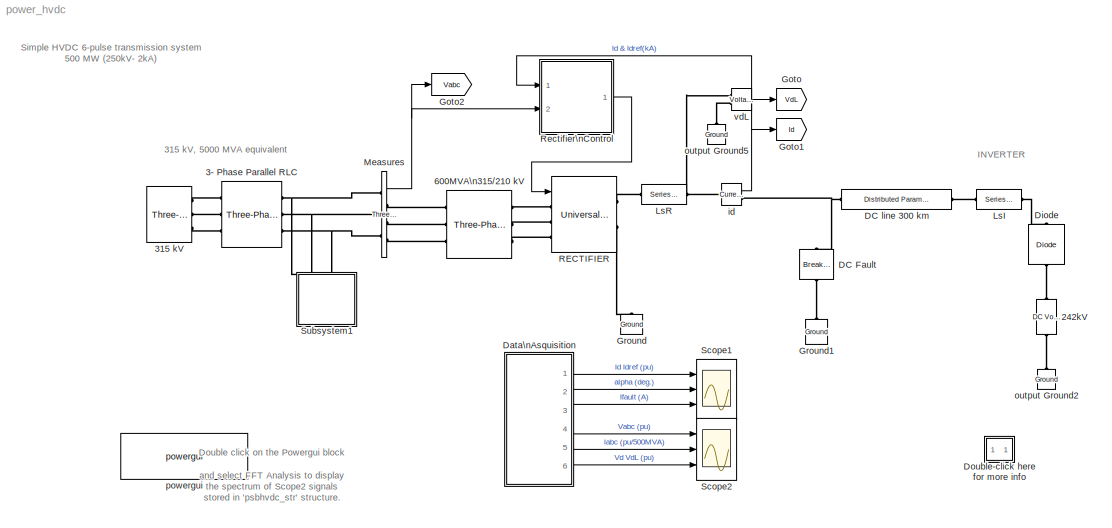
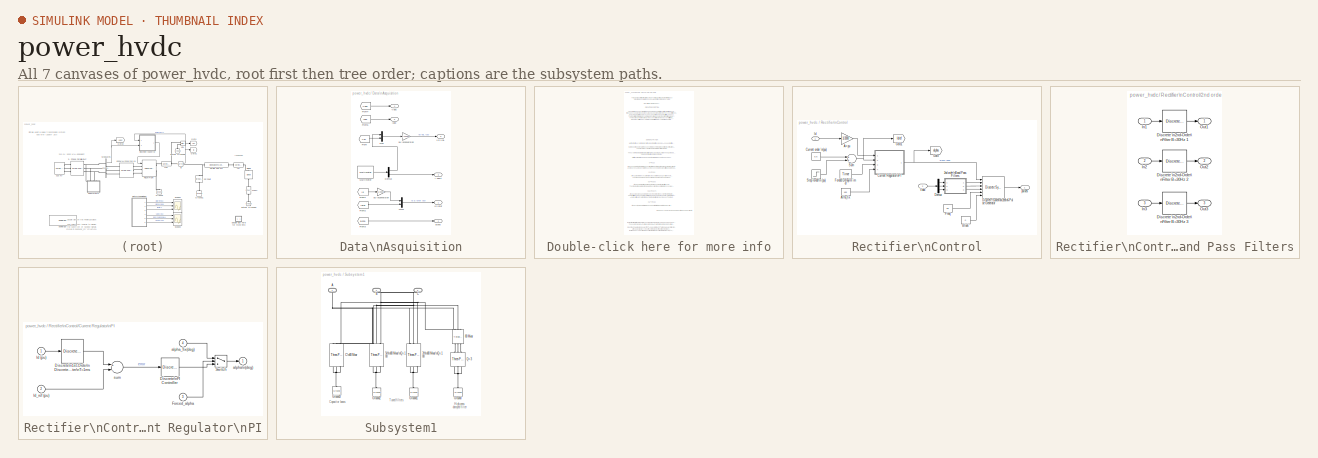
[diagram: thumbnail index - all 7 canvases of the model, root first then tree order]
MODEL power_hvdc
KIND model
BLOCK [Reference] 242kV  REF=powerlib/Electrical\nSources/DC Voltage Source
  Amplitude = 242000
  AttributesFormatString = \\n
  Description = source block
  Measurements = None
  Ports = [0, 0, 0, 0, 0, 1, 1]
  ShowPortLabels = on
  SourceBlock = powerlib/Electrical\nSources/DC Voltage Source
  SourceType = DC Voltage Source
BLOCK [Reference] 3- Phase Parallel RLC  REF=powerlib/Elements/Three-Phase\nParallel RLC Branch
  AttributesFormatString = \\n
  Capacitance = 0
  Inductance = 23.264e-3
  LConnTagsString = A|B|C
  LeftPortType = p1
  Measurements = None
  PhysicalDomain = powersysdomain
  Ports = [0, 0, 0, 0, 0, 3, 3]
  RConnTagsString = A|B|C
  Resistance = 12.41
  RightPortType = p1
  SourceBlock = powerlib/Elements/Three-Phase\nParallel RLC Branch
  SourceType = Three-Phase Parallel RLC Branch
  SubClassName = unknown
BLOCK [Reference] 315 kV  REF=powerlib/Electrical\nSources/Three-Phase Source
  BaseVoltage = 0
  Frequency = 60
  Inductance = 46.671e-3
  InternalConnection = Yg
  PhaseAngle = 0
  Ports = [0, 0, 0, 0, 0, 0, 3]
  Resistance = 0
  ShortCircuitLevel = 0
  ShowPortLabels = on
  SourceBlock = powerlib/Electrical\nSources/Three-Phase Source
  SourceType = Three-Phase Source
  SpecifyImpedance = off
  Voltage = 315e3
  XRratio = 0
BLOCK [Reference] 600MVA\n315//210 kV  REF=powerlib/Elements/Three-Phase\nTransformer\n(Two Windings)
  AttributesFormatString = \\n
  DataFile = 'hysteresis'
  Hysteresis = off
  InitialFluxes = [ 0.8 , -0.8 , 0.7 ]
  Lm = 500
  Measurements = None
  NominalPower = [ 600e6 60 ]
  Ports = [0, 0, 0, 0, 0, 3, 3]
  Rm = 500
  Saturation = [ 0,0  ;  0.005,1.2  ;  1.0,1.4 ]
  SetInitialFlux = off
  SetSaturation = off
  ShowPortLabels = on
  SourceBlock = powerlib/Elements/Three-Phase\nTransformer\n(Two Windings)
  SourceType = Three-Phase Transformer (Two Windings)
  TransfoNumber = 0
  Winding1 = [ 315e3*0.97 0.0015  0.0 ]
  Winding1Connection = Yg
  Winding2 = [ 210e3 0.0015 0.12]
  Winding2Connection = Delta (D1)
BLOCK [Reference] DC Fault  REF=powerlib/Elements/Breaker
  AttributesFormatString = \\n
  BreakerResistance = 0.1
  External = off
  InitialState = 0
  Measurements = Branch current
  Ports = [0, 0, 0, 0, 0, 1, 1]
  ShowPortLabels = on
  SnubberCapacitance = 0
  SnubberResistance = inf
  SourceBlock = powerlib/Elements/Breaker
  SourceType = Breaker
  SwitchingTimes = [ 0.5 0.51 ]
BLOCK [Reference] DC line 300 km  REF=powerlib/Elements/Distributed Parameters Line
  AttributesFormatString = \\n
  Capacitance = 14.4e-9
  Frequency = 60
  Inductance = 0.792e-3
  Length = 300
  Measurements = None
  Phases = 1
  Ports = [0, 0, 0, 0, 0, 1, 1]
  Resistance = 0.015
  ShowPortLabels = on
  SourceBlock = powerlib/Elements/Distributed Parameters Line
  SourceType = Distributed Parameters Line
  x1 = [0 0 0 0; 0.0001244 0 0 0; 0.0002488 0 0 0; 0.0003733 0 0 0; 0.0004977 0 0 0; 0.0006221 0 0 0]
  x2 = [0 0 0 0; 0.0001244 0 0 0; 0.0002488 0 0 0; 0.0003733 0 0 0; 0.0004977 0 0 0; 0.0006221 0 0 0]
  x3 = [0 0 0 0; 0.0001244 0 0 0; 0.0002488 0 0 0; 0.0003733 0 0 0; 0.0004977 0 0 0; 0.0006221 0 0 0]
  x4 = [0 0 0 0; 0.0001244 0 0 0; 0.0002488 0 0 0; 0.0003733 0 0 0; 0.0004977 0 0 0; 0.0006221 0 0 0]
  x5 = 0
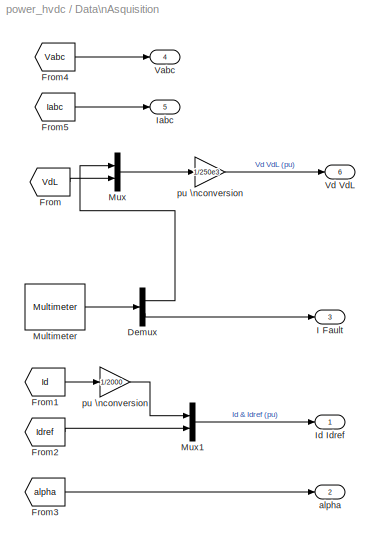
BLOCK [SubSystem] Data\nAsquisition
  MinAlgLoopOccurrences = off
  Ports = [0, 6]
  RTWSystemCode = Auto
  TreatAsAtomicUnit = off
BLOCK [Demux] Data\nAsquisition/Demux
  Outputs = 2
  Ports = [1, 2]
BLOCK [From] Data\nAsquisition/From
  CloseFcn = tagdialog Close
  DialogController = Simulink.DDGSource
  GotoTag = VdL
BLOCK [From] Data\nAsquisition/From1
  CloseFcn = tagdialog Close
  DialogController = Simulink.DDGSource
  GotoTag = Id
BLOCK [From] Data\nAsquisition/From2
  CloseFcn = tagdialog Close
  DialogController = Simulink.DDGSource
  GotoTag = Idref
BLOCK [From] Data\nAsquisition/From3
  CloseFcn = tagdialog Close
  DialogController = Simulink.DDGSource
  GotoTag = alpha
BLOCK [From] Data\nAsquisition/From4
  CloseFcn = tagdialog Close
  DialogController = Simulink.DDGSource
  GotoTag = Vabc
BLOCK [From] Data\nAsquisition/From5
  CloseFcn = tagdialog Close
  DialogController = Simulink.DDGSource
  GotoTag = Iabc
BLOCK [Outport] Data\nAsquisition/I Fault
  BusOutputAsStruct = off
  IconDisplay = Port number
  Port = 3
BLOCK [Outport] Data\nAsquisition/Iabc
  BusOutputAsStruct = off
  IconDisplay = Port number
  Port = 5
BLOCK [Outport] Data\nAsquisition/Id Idref 
  BusOutputAsStruct = off
  IconDisplay = Port number
BLOCK [Reference] Data\nAsquisition/Multimeter  REF=powerlib/Measurements/Multimeter
  AttributesFormatString = \\n
  AxesSetting = [0,0.1,-100,100]
  Display = 0
  Gain = [1 1]
  L = 5
  OutputType = Magnitude
  PSBOutputType = 1
  PSBequivalent = 0
  PhasorSimulation = off
  Ports = [0, 1]
  SavedBlockNames = {}
  ShowPortLabels = on
  SourceBlock = powerlib/Measurements/Multimeter
  SourceType = MultimeterPSB
  Tag = PoWeRsYsTeMmEaSuReMeNt
  sel = [4 5]
  yselected = {'Udc: RECTIFIER','Ib: DC Fault'};
BLOCK [Mux] Data\nAsquisition/Mux
  DisplayOption = bar
  Inputs = 2
  Ports = [2, 1]
BLOCK [Mux] Data\nAsquisition/Mux1
  DisplayOption = bar
  Inputs = 2
  Ports = [2, 1]
BLOCK [Outport] Data\nAsquisition/Vabc
  BusOutputAsStruct = off
  IconDisplay = Port number
  Port = 4
BLOCK [Outport] Data\nAsquisition/Vd VdL
  BusOutputAsStruct = off
  IconDisplay = Port number
  Port = 6
BLOCK [Outport] Data\nAsquisition/alpha
  BusOutputAsStruct = off
  IconDisplay = Port number
  Port = 2
BLOCK [Gain] Data\nAsquisition/pu \nconversion
  Gain = 1/2000
BLOCK [Gain] Data\nAsquisition/pu \nconversion 
  Gain = 1/250e3
BLOCK [Reference] Diode  REF=powerlib/Power\nElectronics/Diode
  AttributesFormatString = \\n
  Cs = 0.05e-6
  IC = 0
  Lon = 0
  Measurements = off
  Ports = [0, 0, 0, 0, 0, 1, 1]
  Ron = 0.01
  Rs = 1000
  ShowPortLabels = on
  SourceBlock = powerlib/Power\nElectronics/Diode
  SourceType = Diode
  Vf = 0.8
BLOCK [SubSystem] Double-click here for more info
  MaskDisplay = disp('?')
  MaskIconFrame = on
  MaskIconOpaque = on
  MaskIconRotate = none
  MaskIconUnits = autoscale
  MinAlgLoopOccurrences = off
  Ports = []
  RTWSystemCode = Auto
  TreatAsAtomicUnit = off
BLOCK [Goto] Goto
  DialogController = Simulink.DDGSource
  GotoTag = VdL
  TagVisibility = global
BLOCK [Goto] Goto1
  DialogController = Simulink.DDGSource
  GotoTag = Id
  TagVisibility = global
BLOCK [Goto] Goto2
  DialogController = Simulink.DDGSource
  GotoTag = Vabc
  TagVisibility = global
BLOCK [Reference] Ground  REF=powerlib/Elements/Ground
  AttributesFormatString = \\n
  LConnTagsString = a
  LeftPortType = p1
  PhysicalDomain = powersysdomain
  Ports = [0, 0, 0, 0, 0, 1]
  RightPortType = p1
  SourceBlock = powerlib/Elements/Ground
  SourceType = Ground
  SubClassName = unknown
BLOCK [Reference] Ground1  REF=powerlib/Elements/Ground
  AttributesFormatString = \\n
  LConnTagsString = a
  LeftPortType = p1
  PhysicalDomain = powersysdomain
  Ports = [0, 0, 0, 0, 0, 1]
  RightPortType = p1
  SourceBlock = powerlib/Elements/Ground
  SourceType = Ground
  SubClassName = unknown
BLOCK [Reference] LsI  REF=powerlib/Elements/Series RLC Branch
  AttributesFormatString = \\n
  Capacitance = inf
  Inductance = .5
  LConnTagsString = __new0
  LeftPortType = p1
  Measurements = None
  PhysicalDomain = powersysdomain
  Ports = [0, 0, 0, 0, 0, 1, 1]
  RConnTagsString = __new0
  Resistance = .5
  RightPortType = p1
  SourceBlock = powerlib/Elements/Series RLC Branch
  SourceType = Series RLC Branch
  SubClassName = unknown
BLOCK [Reference] LsR   REF=powerlib/Elements/Series RLC Branch
  AttributesFormatString = \\n
  Capacitance = inf
  Inductance = .5
  LConnTagsString = __new0
  LeftPortType = p1
  Measurements = None
  PhysicalDomain = powersysdomain
  Ports = [0, 0, 0, 0, 0, 1, 1]
  RConnTagsString = __new0
  Resistance = .5
  RightPortType = p1
  SourceBlock = powerlib/Elements/Series RLC Branch
  SourceType = Series RLC Branch
  SubClassName = unknown
BLOCK [Reference] Measures  REF=powerlib/Measurements/Three-Phase\nV-I Measurement
  CurrentMeasurement = yes
  Ipu = on
  LabelI = Iabc
  LabelV = V1
  OutputType = Magnitude
  PSBequivalent = 0
  Pbase = 500e6
  PhasorSimulation = off
  Ports = [0, 1, 0, 0, 0, 3, 3]
  SetLabelI = on
  SetLabelV = off
  ShowPortLabels = on
  SourceBlock = powerlib/Measurements/Three-Phase\nV-I Measurement
  SourceType = Three-Phase VI Measurement
  Vbase = 315e3
  VoltageMeasurement = phase-to-ground
  Vpu = on
BLOCK [Reference] RECTIFIER  REF=powerlib/Power\nElectronics/Universal Bridge
  Arms = 3
  AttributesFormatString = \\n
  Device = Thyristors
  ForwardVoltage = 0
  ForwardVoltages = [  0.8  0.8  ]
  GTOparameters = [ 10e-6 , 20e-6 ]
  IGBTparameters = [ 1e-6 , 2e-6 ]
  Lon = 0
  Measurements = UAB UBC UCA UDC voltages
  Ports = [1, 0, 0, 0, 0, 3, 2]
  Ron = 1e-3
  ShowPortLabels = on
  SnubberCapacitance = 50e-9
  SnubberResistance = 2000
  SourceBlock = powerlib/Power\nElectronics/Universal Bridge
  SourceType = Universal Bridge
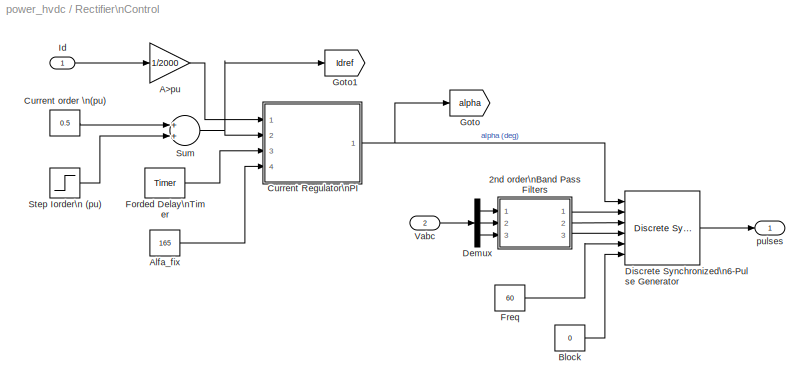
BLOCK [SubSystem] Rectifier\nControl
  MinAlgLoopOccurrences = off
  Ports = [2, 1]
  RTWSystemCode = Auto
  TreatAsAtomicUnit = off
BLOCK [SubSystem] Rectifier\nControl/2nd order\nBand Pass Filters
  MaskDisplay = disp(' Fo=60 Hz<path>=30 Hz')
  MaskIconFrame = on
  MaskIconOpaque = on
  MaskIconRotate = none
  MaskIconUnits = autoscale
  MinAlgLoopOccurrences = off
  Ports = [3, 3]
  RTWSystemCode = Auto
  TreatAsAtomicUnit = off
BLOCK [Reference] Rectifier\nControl/2nd order\nBand Pass Filters/Discrete \n2nd-Order\nFilter B=30Hz 1  REF=powerlib_extras/Discrete \nControl Blocks/Discrete \n2nd-Order\nFilter
  FilterType = Bandpass
  Fo = 60
  Initialize = on
  PlotResponse = off
  Ports = [1, 1]
  ShowPortLabels = on
  SourceBlock = powerlib_extras/Discrete \nControl Blocks/Discrete \n2nd-Order\nFilter
  SourceType = Discrete 2nd-Order Filter
  Ts = 1/360/64
  Vac_Init = [0.8 -25 60]
  Vdc_Init = -0.4
  Zeta = 0.25
  param1 = [1 500 0.1]
BLOCK [Reference] Rectifier\nControl/2nd order\nBand Pass Filters/Discrete \n2nd-Order\nFilter B=30Hz 2  REF=powerlib_extras/Discrete \nControl Blocks/Discrete \n2nd-Order\nFilter
  FilterType = Bandpass
  Fo = 60
  Initialize = on
  PlotResponse = off
  Ports = [1, 1]
  ShowPortLabels = on
  SourceBlock = powerlib_extras/Discrete \nControl Blocks/Discrete \n2nd-Order\nFilter
  SourceType = Discrete 2nd-Order Filter
  Ts = 1/360/64
  Vac_Init = [0.8 -25 60]
  Vdc_Init = -0.4
  Zeta = 0.25
  param1 = [1 500 0.1]
BLOCK [Reference] Rectifier\nControl/2nd order\nBand Pass Filters/Discrete \n2nd-Order\nFilter B=30Hz 3  REF=powerlib_extras/Discrete \nControl Blocks/Discrete \n2nd-Order\nFilter
  FilterType = Bandpass
  Fo = 60
  Initialize = on
  PlotResponse = off
  Ports = [1, 1]
  ShowPortLabels = on
  SourceBlock = powerlib_extras/Discrete \nControl Blocks/Discrete \n2nd-Order\nFilter
  SourceType = Discrete 2nd-Order Filter
  Ts = 1/360/64
  Vac_Init = [0.8 -25 60]
  Vdc_Init = -0.4
  Zeta = 0.25
  param1 = [1 500 0.1]
BLOCK [Inport] Rectifier\nControl/2nd order\nBand Pass Filters/In1
  IconDisplay = Port number
  LatchInput = off
  Port = 1
BLOCK [Inport] Rectifier\nControl/2nd order\nBand Pass Filters/In2
  IconDisplay = Port number
  LatchInput = off
  Port = 2
BLOCK [Inport] Rectifier\nControl/2nd order\nBand Pass Filters/In3
  IconDisplay = Port number
  LatchInput = off
  Port = 3
BLOCK [Outport] Rectifier\nControl/2nd order\nBand Pass Filters/Out1
  BusOutputAsStruct = off
  IconDisplay = Port number
BLOCK [Outport] Rectifier\nControl/2nd order\nBand Pass Filters/Out2
  BusOutputAsStruct = off
  IconDisplay = Port number
  Port = 2
BLOCK [Outport] Rectifier\nControl/2nd order\nBand Pass Filters/Out3
  BusOutputAsStruct = off
  IconDisplay = Port number
  Port = 3
BLOCK [Gain] Rectifier\nControl/A>pu
  Gain = 1/2000
BLOCK [Constant] Rectifier\nControl/Alfa_fix
  MaskIconFrame = on
  MaskIconOpaque = on
  MaskIconRotate = none
  MaskIconUnits = autoscale
  Value = 165
BLOCK [Constant] Rectifier\nControl/Block
  MaskIconFrame = on
  MaskIconOpaque = on
  MaskIconRotate = none
  MaskIconUnits = autoscale
  Value = 0
BLOCK [SubSystem] Rectifier\nControl/Current Regulator\nPI
  MinAlgLoopOccurrences = off
  Ports = [4, 1]
  RTWSystemCode = Auto
  TreatAsAtomicUnit = off
BLOCK [Reference] Rectifier\nControl/Current Regulator\nPI/Discrete\n1st-Order\nDiscrete Filter\nT=1ms  REF=powerlib_extras/Discrete \nControl Blocks/Discrete\n1st-Order\nDiscrete Filter
  FilterType = Lowpass
  Initialize = off
  PlotResponse = off
  Ports = [1, 1]
  ShowPortLabels = on
  SourceBlock = powerlib_extras/Discrete \nControl Blocks/Discrete\n1st-Order\nDiscrete Filter
  SourceType = Discrete 1st-Order Filter
  Tc = 1e-3
  Ts = 1/360/64
  Vac_Init = [0.8 -25 60]
  Vdc_Init = -0.4
  param1 = [1 500 0.1]
BLOCK [Reference] Rectifier\nControl/Current Regulator\nPI/Discrete\nPI Controller  REF=powerlib_extras/Discrete \nControl Blocks/Discrete\nPI Controller
  Init = 90
  Ki = 5000
  Kp = 65
  Par_Limits = [165 5]
  Ports = [1, 1]
  ShowPortLabels = on
  SourceBlock = powerlib_extras/Discrete \nControl Blocks/Discrete\nPI Controller
  SourceType = Discrete PI Controller
  Ts = 1/360/64
BLOCK [Inport] Rectifier\nControl/Current Regulator\nPI/Forced_alpha
  IconDisplay = Port number
  LatchInput = off
  Port = 3
BLOCK [Inport] Rectifier\nControl/Current Regulator\nPI/Id (pu)
  IconDisplay = Port number
  LatchInput = off
  Port = 1
BLOCK [Inport] Rectifier\nControl/Current Regulator\nPI/Id_ref (pu)
  IconDisplay = Port number
  LatchInput = off
  Port = 2
BLOCK [Switch] Rectifier\nControl/Current Regulator\nPI/Switch
  SaturateOnIntegerOverflow = off
  Threshold = 0.5
  ZeroCross = off
BLOCK [Outport] Rectifier\nControl/Current Regulator\nPI/alpha\n(deg)
  BusOutputAsStruct = off
  IconDisplay = Port number
  InitialOutput = 0
BLOCK [Inport] Rectifier\nControl/Current Regulator\nPI/alpha_fix(deg)
  IconDisplay = Port number
  LatchInput = off
  Port = 4
BLOCK [Sum] Rectifier\nControl/Current Regulator\nPI/sum
  Inputs = +-
  Ports = [2, 1]
BLOCK [Constant] Rectifier\nControl/Current order \n(pu)
  MaskIconFrame = on
  MaskIconOpaque = on
  MaskIconRotate = none
  MaskIconUnits = autoscale
  Value = 0.5
BLOCK [Demux] Rectifier\nControl/Demux
  Outputs = 3
  Ports = [1, 3]
BLOCK [Reference] Rectifier\nControl/Discrete Synchronized\n6-Pulse Generator  REF=powerlib_extras/Discrete \nControl Blocks/Discrete Synchronized\n6-Pulse Generator
  Double_Pulse = off
  Ports = [6, 1]
  ShowPortLabels = on
  SourceBlock = powerlib_extras/Discrete \nControl Blocks/Discrete Synchronized\n6-Pulse Generator
  SourceType = Discrete Synchronized 6-pulse generator
  Ts = 1/360/64
  pwidth = 70
BLOCK [Reference] Rectifier\nControl/Forded Delay\nTimer  REF=powerlib_extras/Control \nBlocks/Timer
  Ports = [0, 1]
  ShowPortLabels = on
  SourceBlock = powerlib_extras/Control \nBlocks/Timer
  SourceType = Timer
  e = [1 0  ]
  t = [ 0.55 0.57]
BLOCK [Constant] Rectifier\nControl/Freq
  MaskIconFrame = on
  MaskIconOpaque = on
  MaskIconRotate = none
  MaskIconUnits = autoscale
  Value = 60
BLOCK [Goto] Rectifier\nControl/Goto
  DialogController = Simulink.DDGSource
  GotoTag = alpha
  TagVisibility = global
BLOCK [Goto] Rectifier\nControl/Goto1
  DialogController = Simulink.DDGSource
  GotoTag = Idref
  TagVisibility = global
BLOCK [Inport] Rectifier\nControl/Id
  IconDisplay = Port number
  LatchInput = off
  Port = 1
BLOCK [Step] Rectifier\nControl/Step Iorder\n (pu)  
  After = 0.6
  MaskIconFrame = on
  MaskIconOpaque = on
  MaskIconRotate = none
  MaskIconUnits = autoscale
  SampleTime = 0
  Time = 0.3
  ZeroCross = off
BLOCK [Sum] Rectifier\nControl/Sum
  MaskIconFrame = on
  MaskIconOpaque = on
  MaskIconRotate = none
  MaskIconUnits = autoscale
  Ports = [2, 1]
BLOCK [Inport] Rectifier\nControl/Vabc
  IconDisplay = Port number
  LatchInput = off
  Port = 2
BLOCK [Outport] Rectifier\nControl/pulses
  BusOutputAsStruct = off
  IconDisplay = Port number
BLOCK [Scope] Scope1
  DataFormat = Array
  LimitDataPoints = off
  NumInputPorts = 3
  Ports = [3]
  TimeRange = 0.8
  YMax = 2~170~6000
  YMin = -0.25~0~-500
  ZoomMode = yonly
BLOCK [Scope] Scope2
  DataFormat = StructureWithTime
  LimitDataPoints = off
  NumInputPorts = 3
  Ports = [3]
  SaveName = psbhvdc_str
  SaveToWorkspace = on
  TimeRange = 0.8
  YMax = 1.5~3~2
  YMin = -1.5~-3~-1.5
  ZoomMode = yonly
BLOCK [SubSystem] Subsystem1
  MaskDisplay = disp('AC filters \\n(320 Mvar)')
  MaskIconFrame = on
  MaskIconOpaque = off
  MaskIconRotate = none
  MaskIconUnits = autoscale
  MinAlgLoopOccurrences = off
  Ports = [0, 0, 0, 0, 0, 3]
  RTWSystemCode = Auto
  TreatAsAtomicUnit = off
BLOCK [Reference] Subsystem1/5th\n80 Mvar\nQ=100   REF=powerlib/Elements/Three-Phase\nSeries RLC Branch
  AttributesFormatString = \\n
  Capacitance = 2.14e-6
  Inductance = 131.5e-3
  LConnTagsString = A|B|C
  LeftPortType = p1
  Measurements = None
  PhysicalDomain = powersysdomain
  Ports = [0, 0, 0, 0, 0, 3, 3]
  RConnTagsString = A|B|C
  Resistance = 2.48
  RightPortType = p1
  SourceBlock = powerlib/Elements/Three-Phase\nSeries RLC Branch
  SourceType = Three-Phase Series RLC Branch
  SubClassName = unknown
BLOCK [Reference] Subsystem1/7th\n80 Mvar\nQ=100  REF=powerlib/Elements/Three-Phase\nSeries RLC Branch
  AttributesFormatString = \\n
  Capacitance = 2.14e-6
  Inductance = 67.1e-3
  LConnTagsString = A|B|C
  LeftPortType = p1
  Measurements = None
  PhysicalDomain = powersysdomain
  Ports = [0, 0, 0, 0, 0, 3, 3]
  RConnTagsString = A|B|C
  Resistance = 1.77
  RightPortType = p1
  SourceBlock = powerlib/Elements/Three-Phase\nSeries RLC Branch
  SourceType = Three-Phase Series RLC Branch
  SubClassName = unknown
BLOCK [Reference] Subsystem1/80 Mvar  REF=powerlib/Elements/Three-Phase\nSeries RLC Branch
  AttributesFormatString = \\n
  Capacitance = 2.14e-6
  Inductance = 0
  LConnTagsString = A|B|C
  LeftPortType = p1
  Measurements = None
  PhysicalDomain = powersysdomain
  Ports = [0, 0, 0, 0, 0, 3, 3]
  RConnTagsString = A|B|C
  Resistance = 0
  RightPortType = p1
  SourceBlock = powerlib/Elements/Three-Phase\nSeries RLC Branch
  SourceType = Three-Phase Series RLC Branch
  SubClassName = unknown
BLOCK [PMIOPort] Subsystem1/A
  Port = 1
  Side = Left
BLOCK [PMIOPort] Subsystem1/B
  Port = 2
  Side = Left
BLOCK [PMIOPort] Subsystem1/C
  Port = 3
  Side = Left
BLOCK [Reference] Subsystem1/C\n80 Mvar  REF=powerlib/Elements/Three-Phase\nSeries RLC Branch
  AttributesFormatString = \\n
  Capacitance = 2.14e-6
  Inductance = 0
  LConnTagsString = A|B|C
  LeftPortType = p1
  Measurements = None
  PhysicalDomain = powersysdomain
  Ports = [0, 0, 0, 0, 0, 3, 3]
  RConnTagsString = A|B|C
  Resistance = 0
  RightPortType = p1
  SourceBlock = powerlib/Elements/Three-Phase\nSeries RLC Branch
  SourceType = Three-Phase Series RLC Branch
  SubClassName = unknown
BLOCK [Reference] Subsystem1/Ground  REF=powerlib/Elements/Ground
  AttributesFormatString = \\n
  LConnTagsString = a
  LeftPortType = p1
  PhysicalDomain = powersysdomain
  Ports = [0, 0, 0, 0, 0, 1]
  RightPortType = p1
  SourceBlock = powerlib/Elements/Ground
  SourceType = Ground
  SubClassName = unknown
BLOCK [Reference] Subsystem1/Ground1  REF=powerlib/Elements/Ground
  AttributesFormatString = \\n
  LConnTagsString = a
  LeftPortType = p1
  PhysicalDomain = powersysdomain
  Ports = [0, 0, 0, 0, 0, 1]
  RightPortType = p1
  SourceBlock = powerlib/Elements/Ground
  SourceType = Ground
  SubClassName = unknown
BLOCK [Reference] Subsystem1/Ground2  REF=powerlib/Elements/Ground
  AttributesFormatString = \\n
  LConnTagsString = a
  LeftPortType = p1
  PhysicalDomain = powersysdomain
  Ports = [0, 0, 0, 0, 0, 1]
  RightPortType = p1
  SourceBlock = powerlib/Elements/Ground
  SourceType = Ground
  SubClassName = unknown
BLOCK [Reference] Subsystem1/Ground3  REF=powerlib/Elements/Ground
  AttributesFormatString = \\n
  LConnTagsString = a
  LeftPortType = p1
  PhysicalDomain = powersysdomain
  Ports = [0, 0, 0, 0, 0, 1]
  RightPortType = p1
  SourceBlock = powerlib/Elements/Ground
  SourceType = Ground
  SubClassName = unknown
BLOCK [Reference] Subsystem1/Q=3  REF=powerlib/Elements/Three-Phase\nParallel RLC Branch
  AttributesFormatString = \\n
  Capacitance = 0
  Inductance = 27.2e-3
  LConnTagsString = A|B|C
  LeftPortType = p1
  Measurements = None
  PhysicalDomain = powersysdomain
  Ports = [0, 0, 0, 0, 0, 3, 3]
  RConnTagsString = A|B|C
  Resistance = 225.6
  RightPortType = p1
  SourceBlock = powerlib/Elements/Three-Phase\nParallel RLC Branch
  SourceType = Three-Phase Parallel RLC Branch
  SubClassName = unknown
BLOCK [Reference] id  REF=powerlib/Measurements/Current Measurement
  AttributesFormatString = \\n
  OutputType = Complex
  PSBequivalent = 0
  PhasorSimulation = off
  Ports = [0, 1, 0, 0, 0, 1, 1]
  ShowPortLabels = on
  SourceBlock = powerlib/Measurements/Current Measurement
  SourceType = Current Measurement
  Tag = PoWeRsYsTeMmEaSuReMeNt
BLOCK [Reference] output Ground2  REF=powerlib/Elements/Ground
  AttributesFormatString = \\n
  LConnTagsString = a
  LeftPortType = p1
  PhysicalDomain = powersysdomain
  Ports = [0, 0, 0, 0, 0, 1]
  RightPortType = p1
  SourceBlock = powerlib/Elements/Ground
  SourceType = Ground
  SubClassName = unknown
BLOCK [Reference] output Ground5  REF=powerlib/Elements/Ground
  AttributesFormatString = \\n
  LConnTagsString = a
  LeftPortType = p1
  PhysicalDomain = powersysdomain
  Ports = [0, 0, 0, 0, 0, 1]
  RightPortType = p1
  SourceBlock = powerlib/Elements/Ground
  SourceType = Ground
  SubClassName = unknown
BLOCK [Reference] powergui  REF=powerlib/powergui
  DisplayStyle = off
  Frange = [0:2:500]
  FreqAxis = on
  MaxFrequency = 2000
  Ports = []
  Priority = 2
  RmsSteady = 1
  ShowPortLabels = on
  SourceBlock = powerlib/powergui
  SourceType = PSB option menu block
  StartTime = 0.8-2/60
  Ts = 1/360/64
  Xlog = off
  Ylog = off
  ZoomFFT = on
  cycles = 2
  display = off
  echomessages = off
  frequency = 60
  frequencyindice = 1
  frequencyindicesteady = 1
  fundamental = 60
  methode = off
  save = off
  structure = psbhvdc_str
  variable = ZData
BLOCK [Reference] vdL  REF=powerlib/Measurements/Voltage Measurement
  AttributesFormatString = \\n
  OutputType = Complex
  PSBequivalent = 0
  PhasorSimulation = off
  Ports = [0, 1, 0, 0, 0, 2]
  ShowPortLabels = on
  SourceBlock = powerlib/Measurements/Voltage Measurement
  SourceType = Voltage Measurement
  Tag = PoWeRsYsTeMmEaSuReMeNt
ANNOTATION (root): 315 kV, 5000 MVA equivalent
ANNOTATION (root): Double click on the Powergui block \nand select FFT Analysis to display\nthe spectrum of Scope2 signals\nstored in 'psbhvdc_str' structure.
ANNOTATION (root): INVERTER
ANNOTATION (root): Simple HVDC 6-pulse transmission system\n500 MW (250kV- 2kA)
ANNOTATION Double-click here for more info: 0 < t < 0.3 s
ANNOTATION Double-click here for more info: 0.3 < t < 0.5 s
ANNOTATION Double-click here for more info: 0.5 < t < 0.55 s
ANNOTATION Double-click here for more info: 0.55 < t <0.57 s
ANNOTATION Double-click here for more info: 0.57 < t < 0.8 s
ANNOTATION Double-click here for more info: A 500 MW (250 kV, 2 kA) DC linterconnexion is used to transmit power from a 315 kV, 5000 MVA AC network. The network is simulated by a LLR damped equivalent \n(impedance angle of 80 degrees at 60 Hz and 3rd harmonic). The converter transformer and the rectifier are modelled respectively with the Universal Transformer \nand Universal Bridge blocks The converter is a 6-pulse rectifier. It is connect...<+1115ch>
ANNOTATION Double-click here for more info: At t = 0.3 s, the reference current is increased from 0.5 pu (1 kA) to the nominal current 1pu (2 kA). The current regulator responds in approximately 0.1 s (6 cycles).\nThe alpha angle decreases from 30 degrees to 15 degrees.
ANNOTATION Double-click here for more info: At t = 0.5 s, a DC fault is applied on the line. The fault current ( trace 3) increases to 5 kA and the Id current increases to to 2 pu (4 kA) in 10 ms. \nThen, the fast regulator action lowers the current back to its reference value of 1 pu..
ANNOTATION Double-click here for more info: At t = 0.55 s, the alpha angle is forced by the protection system (not simulated) to reach 165 degrees when the Forced_alpha input of the current regulator goes high (1). \nThe rectifier thus passes in inverter mode and sends the energy stored in the line back to the 345 kV network. \nAs a result, the arc current producing the fault rapidly decreases . The fault is cleared at t = 0.555 s when the ...<+39ch>
ANNOTATION Double-click here for more info: At t = 0.57 s, the regulator is released and it starts to regulate the DC current again. The steady-state 1 pu current is reached at t = 0.75 s.
ANNOTATION Double-click here for more info: CIRCUIT DESCRIPTION
ANNOTATION Double-click here for more info: DEMONSTRATION
ANNOTATION Double-click here for more info: Frequency analysis of AC and DC voltages and currents
ANNOTATION Double-click here for more info: G. Sybille (Hydro-Quebec)
ANNOTATION Double-click here for more info: In order to alllow further signal processing, signals displayed on Scope2 have been saved in a variable named 'psbvdc_str' ( structure with time'). \nThese signals are : AC voltages (input 1) , AC currents (input 2) and DC voltages on rectifier and line side of the smoothing reactor (input 3). \n\nOpen the Powergui and select 'FFT Analysis'. In the FFT window select structure 'psbhvdc_str'. The 0 ...<+800ch>
ANNOTATION Double-click here for more info: Note: In oder to appreciate the speed improvemnt obtained with discretisation, you may try continuous simulation mode after completing this demo.\n The discrete system is approximately 6 times faster.
ANNOTATION Double-click here for more info: Notice that the system is discretized (sample time 1/360/64 = 43.4 us). Setting, the sample time in to zero, will change to continuous integration for the power system .
ANNOTATION Double-click here for more info: The system is programmed to start and reach a steady state. Then, a step is applied on the reference current to observe the dynamic response of the regulator.\nFinally a DC fault is applied on the line. \n\nStart the simulation and observe the following events on Scope1 :
ANNOTATION Double-click here for more info: This demonstration illustrates steady-state and transient performance\nof a simple 500 MW (250 kV-2kA) HVDC transmission system
ANNOTATION Double-click here for more info: Trace 1 shows the the reference current (magenta) and the measured Id current (yellow). The reference current is set to 0.5 pu (1 kA). The DC current starts from zero\nand reaches a steady-state in 0.1 s. Trace 2 shows the alpha firing angle required to obtain 0.5 pu of current (30 degrees).
ANNOTATION Subsystem1: Capacitor bancs
ANNOTATION Subsystem1: High-pass\ndamped filter
ANNOTATION Subsystem1: Tuned filters
LINE Data\nAsquisition/Demux:1 -> Data\nAsquisition/Mux:1
LINE Data\nAsquisition/Demux:2 -> Data\nAsquisition/I Fault:1
LINE Data\nAsquisition/From1:1 -> Data\nAsquisition/pu \nconversion:1
LINE Data\nAsquisition/From2:1 -> Data\nAsquisition/Mux1:2
LINE Data\nAsquisition/From3:1 -> Data\nAsquisition/alpha:1
LINE Data\nAsquisition/From4:1 -> Data\nAsquisition/Vabc:1
LINE Data\nAsquisition/From5:1 -> Data\nAsquisition/Iabc:1
LINE Data\nAsquisition/From:1 -> Data\nAsquisition/Mux:2
LINE Data\nAsquisition/Multimeter:1 -> Data\nAsquisition/Demux:1
LINE Data\nAsquisition/Mux1:1 -> Data\nAsquisition/Id Idref :1
LINE Data\nAsquisition/Mux:1 -> Data\nAsquisition/pu \nconversion :1
LINE Data\nAsquisition/pu \nconversion :1 -> Data\nAsquisition/Vd VdL:1
LINE Data\nAsquisition/pu \nconversion:1 -> Data\nAsquisition/Mux1:1
LINE Data\nAsquisition:1 -> Scope1:1
LINE Data\nAsquisition:2 -> Scope1:2
LINE Data\nAsquisition:3 -> Scope1:3
LINE Data\nAsquisition:4 -> Scope2:1
LINE Data\nAsquisition:5 -> Scope2:2
LINE Data\nAsquisition:6 -> Scope2:3
NET Measures:1 -> Goto2:1, Rectifier\nControl:2
LINE Rectifier\nControl/2nd order\nBand Pass Filters/Discrete \n2nd-Order\nFilter B=30Hz 1:1 -> Rectifier\nControl/2nd order\nBand Pass Filters/Out1:1
LINE Rectifier\nControl/2nd order\nBand Pass Filters/Discrete \n2nd-Order\nFilter B=30Hz 2:1 -> Rectifier\nControl/2nd order\nBand Pass Filters/Out2:1
LINE Rectifier\nControl/2nd order\nBand Pass Filters/Discrete \n2nd-Order\nFilter B=30Hz 3:1 -> Rectifier\nControl/2nd order\nBand Pass Filters/Out3:1
LINE Rectifier\nControl/2nd order\nBand Pass Filters/In1:1 -> Rectifier\nControl/2nd order\nBand Pass Filters/Discrete \n2nd-Order\nFilter B=30Hz 1:1
LINE Rectifier\nControl/2nd order\nBand Pass Filters/In2:1 -> Rectifier\nControl/2nd order\nBand Pass Filters/Discrete \n2nd-Order\nFilter B=30Hz 2:1
LINE Rectifier\nControl/2nd order\nBand Pass Filters/In3:1 -> Rectifier\nControl/2nd order\nBand Pass Filters/Discrete \n2nd-Order\nFilter B=30Hz 3:1
LINE Rectifier\nControl/2nd order\nBand Pass Filters:1 -> Rectifier\nControl/Discrete Synchronized\n6-Pulse Generator:2
LINE Rectifier\nControl/2nd order\nBand Pass Filters:2 -> Rectifier\nControl/Discrete Synchronized\n6-Pulse Generator:3
LINE Rectifier\nControl/2nd order\nBand Pass Filters:3 -> Rectifier\nControl/Discrete Synchronized\n6-Pulse Generator:4
LINE Rectifier\nControl/A>pu:1 -> Rectifier\nControl/Current Regulator\nPI:1
LINE Rectifier\nControl/Alfa_fix:1 -> Rectifier\nControl/Current Regulator\nPI:4
LINE Rectifier\nControl/Block:1 -> Rectifier\nControl/Discrete Synchronized\n6-Pulse Generator:6
LINE Rectifier\nControl/Current Regulator\nPI/Discrete\n1st-Order\nDiscrete Filter\nT=1ms:1 -> Rectifier\nControl/Current Regulator\nPI/sum:1
LINE Rectifier\nControl/Current Regulator\nPI/Discrete\nPI Controller:1 -> Rectifier\nControl/Current Regulator\nPI/Switch:3
LINE Rectifier\nControl/Current Regulator\nPI/Forced_alpha:1 -> Rectifier\nControl/Current Regulator\nPI/Switch:2
LINE Rectifier\nControl/Current Regulator\nPI/Id (pu):1 -> Rectifier\nControl/Current Regulator\nPI/Discrete\n1st-Order\nDiscrete Filter\nT=1ms:1
LINE Rectifier\nControl/Current Regulator\nPI/Id_ref (pu):1 -> Rectifier\nControl/Current Regulator\nPI/sum:2
LINE Rectifier\nControl/Current Regulator\nPI/Switch:1 -> Rectifier\nControl/Current Regulator\nPI/alpha\n(deg):1
LINE Rectifier\nControl/Current Regulator\nPI/alpha_fix(deg):1 -> Rectifier\nControl/Current Regulator\nPI/Switch:1
LINE Rectifier\nControl/Current Regulator\nPI/sum:1 -> Rectifier\nControl/Current Regulator\nPI/Discrete\nPI Controller:1
NET Rectifier\nControl/Current Regulator\nPI:1 -> Rectifier\nControl/Discrete Synchronized\n6-Pulse Generator:1, Rectifier\nControl/Goto:1
LINE Rectifier\nControl/Current order \n(pu):1 -> Rectifier\nControl/Sum:1
LINE Rectifier\nControl/Demux:1 -> Rectifier\nControl/2nd order\nBand Pass Filters:1
LINE Rectifier\nControl/Demux:2 -> Rectifier\nControl/2nd order\nBand Pass Filters:2
LINE Rectifier\nControl/Demux:3 -> Rectifier\nControl/2nd order\nBand Pass Filters:3
LINE Rectifier\nControl/Discrete Synchronized\n6-Pulse Generator:1 -> Rectifier\nControl/pulses:1
LINE Rectifier\nControl/Forded Delay\nTimer:1 -> Rectifier\nControl/Current Regulator\nPI:3
LINE Rectifier\nControl/Freq:1 -> Rectifier\nControl/Discrete Synchronized\n6-Pulse Generator:5
LINE Rectifier\nControl/Id:1 -> Rectifier\nControl/A>pu:1
LINE Rectifier\nControl/Step Iorder\n (pu)  :1 -> Rectifier\nControl/Sum:2
NET Rectifier\nControl/Sum:1 -> Rectifier\nControl/Current Regulator\nPI:2, Rectifier\nControl/Goto1:1
LINE Rectifier\nControl/Vabc:1 -> Rectifier\nControl/Demux:1
LINE Rectifier\nControl:1 -> RECTIFIER:1
NET id:1 -> Goto1:1, Rectifier\nControl:1
LINE vdL:1 -> Goto:1
PLINE 242kV:LConn1 -- output Ground2:LConn1
PLINE 242kV:RConn1 -- Diode:RConn1
PLINE 3- Phase Parallel RLC:LConn1 -- 315 kV:RConn1
PLINE 3- Phase Parallel RLC:LConn2 -- 315 kV:RConn2
PLINE 3- Phase Parallel RLC:LConn3 -- 315 kV:RConn3
PNET net1: 3- Phase Parallel RLC:RConn1 -- Measures:LConn1 -- Subsystem1:LConn1
PNET net2: 3- Phase Parallel RLC:RConn2 -- Measures:LConn2 -- Subsystem1:LConn2
PNET net3: 3- Phase Parallel RLC:RConn3 -- Measures:LConn3 -- Subsystem1:LConn3
PLINE 600MVA\n315//210 kV:LConn1 -- Measures:RConn1
PLINE 600MVA\n315//210 kV:LConn2 -- Measures:RConn2
PLINE 600MVA\n315//210 kV:LConn3 -- Measures:RConn3
PLINE 600MVA\n315//210 kV:RConn1 -- RECTIFIER:LConn1
PLINE 600MVA\n315//210 kV:RConn2 -- RECTIFIER:LConn2
PLINE 600MVA\n315//210 kV:RConn3 -- RECTIFIER:LConn3
PNET net4: DC Fault:LConn1 -- DC line 300 km:LConn1 -- id:RConn1
PLINE DC Fault:RConn1 -- Ground1:LConn1
PLINE DC line 300 km:RConn1 -- LsI:LConn1
PLINE Diode:LConn1 -- LsI:RConn1
PLINE Ground:LConn1 -- RECTIFIER:RConn2
PLINE LsR :LConn1 -- RECTIFIER:RConn1
PNET net5: LsR :RConn1 -- id:LConn1 -- vdL:LConn1
PNET net6: Subsystem1/5th\n80 Mvar\nQ=100 :LConn1 -- Subsystem1/7th\n80 Mvar\nQ=100:LConn1 -- Subsystem1/80 Mvar:LConn1 -- Subsystem1/A:RConn1 -- Subsystem1/C\n80 Mvar:LConn1
PNET net7: Subsystem1/5th\n80 Mvar\nQ=100 :LConn2 -- Subsystem1/7th\n80 Mvar\nQ=100:LConn2 -- Subsystem1/80 Mvar:LConn2 -- Subsystem1/B:RConn1 -- Subsystem1/C\n80 Mvar:LConn2
PNET net8: Subsystem1/5th\n80 Mvar\nQ=100 :LConn3 -- Subsystem1/7th\n80 Mvar\nQ=100:LConn3 -- Subsystem1/80 Mvar:LConn3 -- Subsystem1/C:RConn1 -- Subsystem1/C\n80 Mvar:LConn3
PNET net9: Subsystem1/5th\n80 Mvar\nQ=100 :RConn1 -- Subsystem1/5th\n80 Mvar\nQ=100 :RConn2 -- Subsystem1/5th\n80 Mvar\nQ=100 :RConn3 -- Subsystem1/Ground2:LConn1
PNET net10: Subsystem1/7th\n80 Mvar\nQ=100:RConn1 -- Subsystem1/7th\n80 Mvar\nQ=100:RConn2 -- Subsystem1/7th\n80 Mvar\nQ=100:RConn3 -- Subsystem1/Ground1:LConn1
PLINE Subsystem1/80 Mvar:RConn1 -- Subsystem1/Q=3:LConn1
PLINE Subsystem1/80 Mvar:RConn2 -- Subsystem1/Q=3:LConn2
PLINE Subsystem1/80 Mvar:RConn3 -- Subsystem1/Q=3:LConn3
PNET net11: Subsystem1/C\n80 Mvar:RConn1 -- Subsystem1/C\n80 Mvar:RConn2 -- Subsystem1/C\n80 Mvar:RConn3 -- Subsystem1/Ground3:LConn1
PNET net12: Subsystem1/Ground:LConn1 -- Subsystem1/Q=3:RConn1 -- Subsystem1/Q=3:RConn2 -- Subsystem1/Q=3:RConn3
PLINE output Ground5:LConn1 -- vdL:LConn2
note: NET lines group one-source signal fan-out (src -> all destinations, sorted); 1:1 wires keep LINE; PNET lines group multi-terminal physical nets as a canonical sorted terminal list (undirected conserving connections); 2-terminal nets keep the pairwise PLINE form
note: 1 file-system path scrubbed to <path> (not preserved elsewhere — flat text is the only slx artifact)
